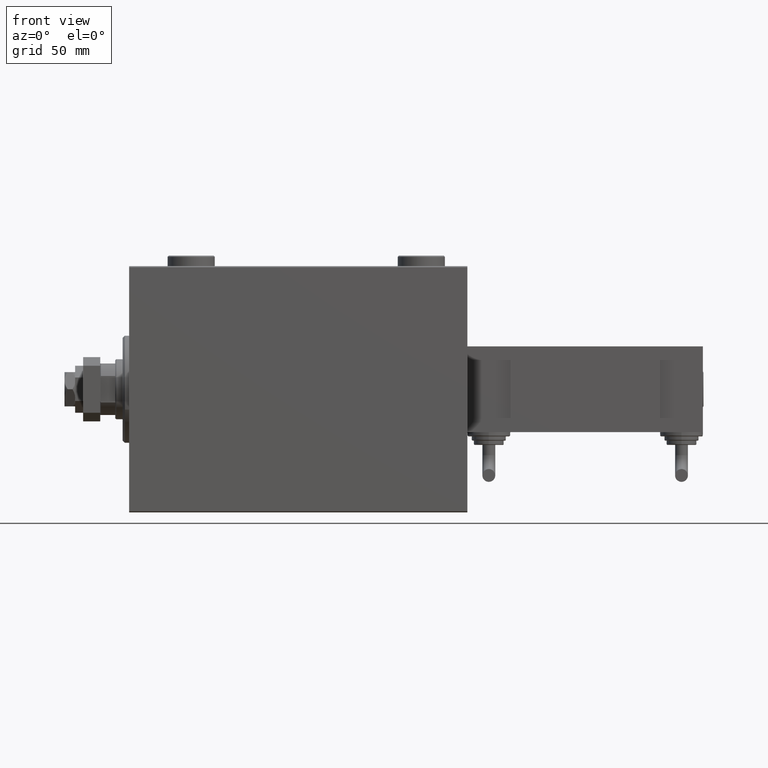
[diagram: clean part render]
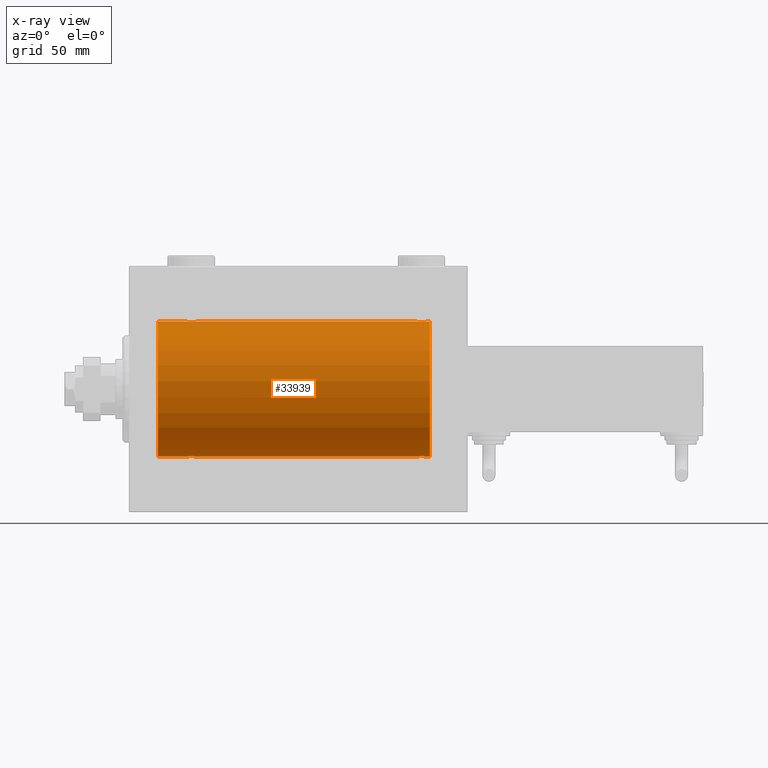
[diagram: x-ray — body ghosted, one internal face saturated and labeled with its STEP entity id]
A machine part, front view, then the same camera in x-ray: the body is ghosted and one INTERNAL B-rep face — a face not visible from any outside direction — is saturated and labeled: STEP entity #33939.
In plain terms, the highlighted cylindrical surface (partial cylindrical patch) has radius 31.5 mm, axis along (-1, -0, -0).
Its self-contained STEP definition (entity closure, byte-faithful):
#186 = B_SPLINE_CURVE_WITH_KNOTS ( 'NONE', 3,
 ( #30580, #46589, #34709, #50460, #15095, #39094, #30828, #11227, #26964, #42718, #23098, #38836, #50719, #19240, #31083, #40372, #48125, #39600, #36750, #43999, #28494, #8376, #21015, #12763, #16109, #23866, #24121, #4769, #44250, #8629, #650, #35729 ),
 .UNSPECIFIED., .F., .F.,
 ( 4, 2, 2, 2, 2, 2, 2, 2, 2, 2, 2, 2, 2, 2, 2, 4 ),
 ( 0.009384682587134639611, 0.009971088165454038837, 0.01055749374377343980, 0.01114389932209284076, 0.01173030490041223999, 0.01231671047873163921, 0.01290311605705104017, 0.01348952163537044113, 0.01407592721368984036, 0.01466233279200923958, 0.01524873837032864055, 0.01583514394864804151, 0.01642154952696744247, 0.01700795510528683996, 0.01759436068360624092, 0.01876717184024503243 ),
 .UNSPECIFIED. ) ;
#650 = CARTESIAN_POINT ( 'NONE',  ( 32.00000000000001421, -0.3965830985361748495, 31.50000000000001421 ) ) ;
#669 = CARTESIAN_POINT ( 'NONE',  ( 13.50000000000001243, 3.857637417314162689E-15, -31.50000000000000000 ) ) ;
#1203 = CARTESIAN_POINT ( 'NONE',  ( 140.5000000000000000, 0.000000000000000000, 31.50000000000000000 ) ) ;
#1431 = EDGE_LOOP ( 'NONE', ( #6270, #6605, #32012, #21652, #31991, #16884, #37772, #20898, #15958, #16199, #49963, #24649 ) ) ;
#1528 = CARTESIAN_POINT ( 'NONE',  ( 134.2390453754387636, -1.981494824113333442, 31.43792153503156683 ) ) ;
#1860 = CARTESIAN_POINT ( 'NONE',  ( 31.60417781274729165, -1.502389880412996259, -31.46458023642406587 ) ) ;
#2278 = CARTESIAN_POINT ( 'NONE',  ( 135.7211808735768841, -2.903733559410683895, 31.36590199989304395 ) ) ;
#2366 = CARTESIAN_POINT ( 'NONE',  ( 26.00000000000000355, -0.3965830985361813443, -31.50000000000000711 ) ) ;
#2523 = CARTESIAN_POINT ( 'NONE',  ( 137.4694445565852448, -2.845838211243329585, -31.37127560316186603 ) ) ;
#3789 = CARTESIAN_POINT ( 'NONE',  ( 133.8047035764099064, -1.331741824817667563, -31.47235367475392920 ) ) ;
#3978 = CIRCLE ( 'NONE', #41914, 31.50000000000000000 ) ;
#4769 = CARTESIAN_POINT ( 'NONE',  ( 31.60192140439154684, -1.506272792558323470, 31.46439306106697131 ) ) ;
#4809 = B_SPLINE_CURVE_WITH_KNOTS ( 'NONE', 3,
 ( #32218, #21379, #10012, #25502, #37367, #21122, #10269, #36860, #1528, #41250, #13630, #17264, #29370, #48994, #2278, #13880, #25755, #48496, #22137, #45119, #41752, #44871, #9762, #32986, #48751, #37119, #13130, #37874, #17516, #13380, #29119, #28866 ),
 .UNSPECIFIED., .F., .F.,
 ( 4, 2, 2, 2, 2, 2, 2, 2, 2, 2, 2, 2, 2, 2, 2, 4 ),
 ( 0.009384682587134643081, 0.009971088165454042307, 0.01055749374377344327, 0.01114389932209284423, 0.01173030490041224345, 0.01231671047873164268, 0.01290311605705104364, 0.01348952163537044460, 0.01407592721368984383, 0.01466233279200924305, 0.01524873837032864402, 0.01583514394864804498, 0.01642154952696744594, 0.01700795510528684690, 0.01759436068360624439, 0.01876717184024504284 ),
 .UNSPECIFIED. ) ;
#4910 = EDGE_CURVE ( 'NONE', #47163, #50604, #32441, .T. ) ;
#4996 = CARTESIAN_POINT ( 'NONE',  ( 13.50000000000001243, 0.000000000000000000, 0.000000000000000000 ) ) ;
#5985 = CARTESIAN_POINT ( 'NONE',  ( 28.03484270189360217, -2.847307171789034808, -31.37114183851420179 ) ) ;
#5986 = CARTESIAN_POINT ( 'NONE',  ( 26.00000000000000355, -6.595038141055444136E-15, -31.50000000000000000 ) ) ;
#5996 = CARTESIAN_POINT ( 'NONE',  ( 26.00000000000000355, -2.117263226567934635E-23, 31.50000000000000000 ) ) ;
#6139 = CARTESIAN_POINT ( 'NONE',  ( 139.1971423883670411, -1.328004386210298815, -31.47251238182141009 ) ) ;
#6239 = CARTESIAN_POINT ( 'NONE',  ( 28.60885452660059869, -2.980809450819698725, -31.35867074198615256 ) ) ;
#6270 = ORIENTED_EDGE ( 'NONE', *, *, #41601, .F. ) ;
#6393 = CARTESIAN_POINT ( 'NONE',  ( 138.0045628500700161, -2.602826974226397638, -31.39247100434485560 ) ) ;
#6605 = ORIENTED_EDGE ( 'NONE', *, *, #4910, .T. ) ;
#6675 = DIRECTION ( 'NONE',  ( -1.000000000000000000, -0.000000000000000000, -0.000000000000000000 ) ) ;
#6741 = CARTESIAN_POINT ( 'NONE',  ( 31.38501442276926667, -1.830470878313872563, -31.44719957596828763 ) ) ;
#6763 = VECTOR ( 'NONE', #29560, 1000.000000000000000 ) ;
#6924 = CARTESIAN_POINT ( 'NONE',  ( 140.5000000000000000, 3.857637417314162689E-15, -31.50000000000000000 ) ) ;
#7546 = DIRECTION ( 'NONE',  ( -1.000000000000000000, -0.000000000000000000, -0.000000000000000000 ) ) ;
#8376 = CARTESIAN_POINT ( 'NONE',  ( 30.32865414687508832, -2.696917666262907520, 31.38442820068731365 ) ) ;
#8629 = CARTESIAN_POINT ( 'NONE',  ( 31.92020662950040943, -0.7905881588836116691, 31.49214662150068378 ) ) ;
#8660 = EDGE_CURVE ( 'NONE', #46726, #11712, #15277, .T. ) ;
#9762 = CARTESIAN_POINT ( 'NONE',  ( 138.0009815629614991, -2.604888532024791203, 31.39229907792058683 ) ) ;
#9842 = CARTESIAN_POINT ( 'NONE',  ( 27.17295774629732819, -2.387531469909775605, -31.40957782495775419 ) ) ;
#9996 = CARTESIAN_POINT ( 'NONE',  ( 139.3466046374249743, -0.9669616078781922974, -31.48567319468626735 ) ) ;
#10012 = CARTESIAN_POINT ( 'NONE',  ( 133.5189849060847962, -0.3904857149112037629, 31.49817436802766935 ) ) ;
#10097 = CARTESIAN_POINT ( 'NONE',  ( 32.00000000000001421, -0.1958045626907418957, -31.50000000000000711 ) ) ;
#10269 = CARTESIAN_POINT ( 'NONE',  ( 133.8958221872527474, -1.502389880412993595, 31.46458023642405877 ) ) ;
#10351 = CARTESIAN_POINT ( 'NONE',  ( 31.98101509391517538, -0.3904857149111993775, -31.49817436802766224 ) ) ;
#10822 = CARTESIAN_POINT ( 'NONE',  ( 133.5000000000000000, -1.352509265459636606E-14, -31.50000000000000000 ) ) ;
#10898 = CARTESIAN_POINT ( 'NONE',  ( 139.5000000000000000, 3.857637396132320472E-15, -31.50000000000000000 ) ) ;
#11059 = VERTEX_POINT ( 'NONE', #5996 ) ;
#11227 = CARTESIAN_POINT ( 'NONE',  ( 26.61498557723073333, -1.830470878313877892, 31.44719957596828053 ) ) ;
#11514 = EDGE_CURVE ( 'NONE', #26627, #40296, #18370, .T. ) ;
#11527 = CARTESIAN_POINT ( 'NONE',  ( 134.6729577462972713, -2.387531469909777382, -31.40957782495775419 ) ) ;
#11712 = VERTEX_POINT ( 'NONE', #27867 ) ;
#12297 = VERTEX_POINT ( 'NONE', #669 ) ;
#12596 = DIRECTION ( 'NONE',  ( -1.000000000000000000, 0.000000000000000000, 0.000000000000000000 ) ) ;
#12763 = CARTESIAN_POINT ( 'NONE',  ( 30.82704225370267892, -2.387531469909770276, 31.40957782495776129 ) ) ;
#13130 = CARTESIAN_POINT ( 'NONE',  ( 138.8824687226663173, -1.833765390051030009, 31.44700610425690712 ) ) ;
#13279 = VECTOR ( 'NONE', #6675, 1000.000000000000000 ) ;
#13380 = CARTESIAN_POINT ( 'NONE',  ( 139.4202066295003988, -0.7905881588836107809, 31.49214662150069088 ) ) ;
#13630 = CARTESIAN_POINT ( 'NONE',  ( 134.6695630851299654, -2.384935707362434876, 31.40977595730572958 ) ) ;
#13707 = CARTESIAN_POINT ( 'NONE',  ( 29.20046458974095671, -2.999845816735294157, -31.35683219171744085 ) ) ;
#13856 = EDGE_CURVE ( 'NONE', #50604, #25341, #47058, .T. ) ;
#13880 = CARTESIAN_POINT ( 'NONE',  ( 136.1046588899990581, -2.980257240990053624, 31.35872356503797320 ) ) ;
#14074 = LINE ( 'NONE', #38318, #6763 ) ;
#14122 = CARTESIAN_POINT ( 'NONE',  ( 137.8323995809916767, -2.695056442718527290, -31.38458855656186230 ) ) ;
#14623 = CARTESIAN_POINT ( 'NONE',  ( 133.5000000000000000, -1.352509265459636606E-14, -31.50000000000000000 ) ) ;
#14647 = CARTESIAN_POINT ( 'NONE',  ( 140.5000000000000000, 0.000000000000000000, 31.50000000000000000 ) ) ;
#14960 = FACE_OUTER_BOUND ( 'NONE', #1431, .T. ) ;
#15095 = CARTESIAN_POINT ( 'NONE',  ( 26.15339536257501507, -0.9669616078781987367, 31.48567319468626735 ) ) ;
#15135 = CARTESIAN_POINT ( 'NONE',  ( 133.5797933704996581, -0.7905881588836228824, -31.49214662150070509 ) ) ;
#15277 = LINE ( 'NONE', #42897, #36718 ) ;
#15958 = ORIENTED_EDGE ( 'NONE', *, *, #29459, .T. ) ;
#16109 = CARTESIAN_POINT ( 'NONE',  ( 30.98143462873041898, -2.261012035264782227, 31.41905495618429356 ) ) ;
#16199 = ORIENTED_EDGE ( 'NONE', *, *, #21656, .F. ) ;
#16884 = ORIENTED_EDGE ( 'NONE', *, *, #25136, .T. ) ;
#17087 = LINE ( 'NONE', #44707, #44459 ) ;
#17235 = VECTOR ( 'NONE', #38641, 1000.000000000000000 ) ;
#17264 = CARTESIAN_POINT ( 'NONE',  ( 134.9954371499300407, -2.602826974226394086, 31.39247100434485560 ) ) ;
#17516 = CARTESIAN_POINT ( 'NONE',  ( 139.1952964235900652, -1.331741824817656683, 31.47235367475393630 ) ) ;
#17595 = CARTESIAN_POINT ( 'NONE',  ( 30.33239958099164824, -2.695056442718529954, -31.38458855656185875 ) ) ;
#18256 = CARTESIAN_POINT ( 'NONE',  ( 137.2788191264232296, -2.903733559410679455, -31.36590199989304395 ) ) ;
#18340 = DIRECTION ( 'NONE',  ( -1.000000000000000000, -0.000000000000000000, -0.000000000000000000 ) ) ;
#18370 = B_SPLINE_CURVE_WITH_KNOTS ( 'NONE', 3,
 ( #41079, #10097, #10351, #37194, #49330, #29705, #1860, #6741, #41585, #30213, #36945, #45459, #17595, #33318, #49077, #25834, #13707, #29448, #6239, #45201, #5985, #21962, #26087, #9842, #25584, #49839, #37701, #41329, #41840, #21710, #2366, #33827 ),
 .UNSPECIFIED., .F., .F.,
 ( 4, 2, 2, 2, 2, 2, 2, 2, 2, 2, 2, 2, 2, 2, 2, 4 ),
 ( 0.009384682587134662163, 0.009971088165454068328, 0.01055749374377347449, 0.01114389932209288066, 0.01173030490041228682, 0.01231671047873168605, 0.01290311605705108527, 0.01348952163537048277, 0.01407592721368988199, 0.01466233279200928122, 0.01524873837032868044, 0.01583514394864807967, 0.01642154952696747716, 0.01700795510528687812, 0.01759436068360627908, 0.01876717184024507407 ),
 .UNSPECIFIED. ) ;
#18509 = CARTESIAN_POINT ( 'NONE',  ( 136.3041770556056065, -3.000152387858487923, -31.35680286115500337 ) ) ;
#19019 = CARTESIAN_POINT ( 'NONE',  ( 134.5185653712696308, -2.261012035264782671, -31.41905495618427935 ) ) ;
#19240 = CARTESIAN_POINT ( 'NONE',  ( 28.03055544341478722, -2.845838211243333138, 31.37127560316186603 ) ) ;
#19277 = CARTESIAN_POINT ( 'NONE',  ( 134.1175312773337112, -1.833765390051051769, -31.44700610425689291 ) ) ;
#19529 = CARTESIAN_POINT ( 'NONE',  ( 134.2417549809673574, -1.984587626072075173, -31.43772577203671759 ) ) ;
#19925 = EDGE_CURVE ( 'NONE', #11059, #25592, #25004, .T. ) ;
#20604 = CARTESIAN_POINT ( 'NONE',  ( 13.50000000000001243, 0.000000000000000000, 31.50000000000000000 ) ) ;
#20728 = DIRECTION ( 'NONE',  ( 0.000000000000000000, 0.000000000000000000, 1.000000000000000000 ) ) ;
#20898 = ORIENTED_EDGE ( 'NONE', *, *, #19925, .F. ) ;
#21015 = CARTESIAN_POINT ( 'NONE',  ( 30.50098156296146712, -2.604888532024788983, 31.39229907792058683 ) ) ;
#21122 = CARTESIAN_POINT ( 'NONE',  ( 133.8028576116330441, -1.328004386210311472, 31.47251238182141719 ) ) ;
#21379 = CARTESIAN_POINT ( 'NONE',  ( 133.5000000000000000, -0.1958045626907475856, 31.50000000000000000 ) ) ;
#21652 = ORIENTED_EDGE ( 'NONE', *, *, #27769, .T. ) ;
#21656 = EDGE_CURVE ( 'NONE', #45665, #26732, #17087, .T. ) ;
#21710 = CARTESIAN_POINT ( 'NONE',  ( 26.07979337049960478, -0.7905881588836203289, -31.49214662150069088 ) ) ;
#21863 = CARTESIAN_POINT ( 'NONE',  ( 138.8850144227692738, -1.830470878313873895, -31.44719957596828763 ) ) ;
#21962 = CARTESIAN_POINT ( 'NONE',  ( 27.67134585312494011, -2.696917666262907520, -31.38442820068732786 ) ) ;
#22137 = CARTESIAN_POINT ( 'NONE',  ( 136.8911454733994333, -2.980809450819698281, 31.35867074198615967 ) ) ;
#22377 = CARTESIAN_POINT ( 'NONE',  ( 138.4846035992466682, -2.258226318633792751, -31.41925597582824992 ) ) ;
#22878 = CARTESIAN_POINT ( 'NONE',  ( 133.5000000000000000, -0.3965830985361880057, -31.50000000000000000 ) ) ;
#23098 = CARTESIAN_POINT ( 'NONE',  ( 27.16956308512997964, -2.384935707362437096, 31.40977595730572958 ) ) ;
#23866 = CARTESIAN_POINT ( 'NONE',  ( 31.25824501903266039, -1.984587626072074285, 31.43772577203672469 ) ) ;
#24121 = CARTESIAN_POINT ( 'NONE',  ( 31.38246872266631371, -1.833765390051040223, 31.44700610425690712 ) ) ;
#24649 = ORIENTED_EDGE ( 'NONE', *, *, #8660, .F. ) ;
#24824 = DIRECTION ( 'NONE',  ( -1.000000000000000000, -0.000000000000000000, -0.000000000000000000 ) ) ;
#25004 = LINE ( 'NONE', #14647, #17235 ) ;
#25136 = EDGE_CURVE ( 'NONE', #40296, #12297, #26275, .T. ) ;
#25341 = VERTEX_POINT ( 'NONE', #10822 ) ;
#25502 = CARTESIAN_POINT ( 'NONE',  ( 133.5958054926194905, -0.7775502215293850217, 31.49099686045560276 ) ) ;
#25584 = CARTESIAN_POINT ( 'NONE',  ( 27.01856537126958813, -2.261012035264781783, -31.41905495618428645 ) ) ;
#25592 = VERTEX_POINT ( 'NONE', #20604 ) ;
#25755 = CARTESIAN_POINT ( 'NONE',  ( 136.2995354102590113, -2.999845816735293713, 31.35683219171744796 ) ) ;
#25819 = CYLINDRICAL_SURFACE ( 'NONE', #44942, 31.50000000000000000 ) ;
#25834 = CARTESIAN_POINT ( 'NONE',  ( 29.39534111000094541, -2.980257240990050960, -31.35872356503797320 ) ) ;
#26087 = CARTESIAN_POINT ( 'NONE',  ( 27.49901843703856130, -2.604888532024793424, -31.39229907792058683 ) ) ;
#26275 = LINE ( 'NONE', #6924, #13279 ) ;
#26627 = VERTEX_POINT ( 'NONE', #46387 ) ;
#26732 = VERTEX_POINT ( 'NONE', #47155 ) ;
#26964 = CARTESIAN_POINT ( 'NONE',  ( 26.73904537543869608, -1.981494824113328779, 31.43792153503155973 ) ) ;
#27262 = CARTESIAN_POINT ( 'NONE',  ( 133.8980785956084958, -1.506272792558336793, -31.46439306106695710 ) ) ;
#27769 = EDGE_CURVE ( 'NONE', #25341, #26627, #14074, .T. ) ;
#27867 = CARTESIAN_POINT ( 'NONE',  ( 139.5000000000000000, 4.699731104275013306E-15, 31.50000000000000000 ) ) ;
#28494 = CARTESIAN_POINT ( 'NONE',  ( 29.96515729810641204, -2.847307171789037028, 31.37114183851420890 ) ) ;
#28866 = CARTESIAN_POINT ( 'NONE',  ( 139.5000000000000000, 4.699731104275013306E-15, 31.50000000000000000 ) ) ;
#29119 = CARTESIAN_POINT ( 'NONE',  ( 139.5000000000000000, -0.3965830985361761263, 31.50000000000000000 ) ) ;
#29342 = CARTESIAN_POINT ( 'NONE',  ( 140.5000000000000000, 0.000000000000000000, 0.000000000000000000 ) ) ;
#29370 = CARTESIAN_POINT ( 'NONE',  ( 135.1676004190083233, -2.695056442718522849, 31.38458855656185165 ) ) ;
#29448 = CARTESIAN_POINT ( 'NONE',  ( 28.80417705560560648, -3.000152387858484371, -31.35680286115500337 ) ) ;
#29459 = EDGE_CURVE ( 'NONE', #11059, #26732, #186, .T. ) ;
#29560 = DIRECTION ( 'NONE',  ( -1.000000000000000000, -0.000000000000000000, -0.000000000000000000 ) ) ;
#29605 = CARTESIAN_POINT ( 'NONE',  ( 139.5000000000000000, 3.857637396132320472E-15, -31.50000000000000000 ) ) ;
#29705 = CARTESIAN_POINT ( 'NONE',  ( 31.69714238836700915, -1.328004386210301480, -31.47251238182141009 ) ) ;
#30119 = CARTESIAN_POINT ( 'NONE',  ( 136.8953411100009703, -2.980257240990054513, -31.35872356503798031 ) ) ;
#30213 = CARTESIAN_POINT ( 'NONE',  ( 30.98460359924664687, -2.258226318633781649, -31.41925597582825702 ) ) ;
#30580 = CARTESIAN_POINT ( 'NONE',  ( 26.00000000000000355, -2.117263226567934635E-23, 31.50000000000000000 ) ) ;
#30701 = CARTESIAN_POINT ( 'NONE',  ( 140.5000000000000000, 0.000000000000000000, 0.000000000000000000 ) ) ;
#30828 = CARTESIAN_POINT ( 'NONE',  ( 26.39582218725271900, -1.502389880413001144, 31.46458023642405166 ) ) ;
#31083 = CARTESIAN_POINT ( 'NONE',  ( 28.22118087357680238, -2.903733559410683895, 31.36590199989303684 ) ) ;
#31123 = CARTESIAN_POINT ( 'NONE',  ( 135.7253090556563109, -2.904836261170105960, -31.36579955910873707 ) ) ;
#31319 = AXIS2_PLACEMENT_3D ( 'NONE', #4996, #40075, #20728 ) ;
#31923 = DIRECTION ( 'NONE',  ( -1.000000000000000000, -0.000000000000000000, -0.000000000000000000 ) ) ;
#31991 = ORIENTED_EDGE ( 'NONE', *, *, #11514, .T. ) ;
#32012 = ORIENTED_EDGE ( 'NONE', *, *, #13856, .T. ) ;
#32218 = CARTESIAN_POINT ( 'NONE',  ( 133.5000000000000000, -2.118130973563677748E-23, 31.50000000000000000 ) ) ;
#32441 = LINE ( 'NONE', #40708, #42362 ) ;
#32968 = CARTESIAN_POINT ( 'NONE',  ( 133.5000000000000000, -2.118130973563677748E-23, 31.50000000000000000 ) ) ;
#32986 = CARTESIAN_POINT ( 'NONE',  ( 138.3270422537026718, -2.387531469909772941, 31.40957782495776840 ) ) ;
#33318 = CARTESIAN_POINT ( 'NONE',  ( 29.96944455658523054, -2.845838211243329585, -31.37127560316186603 ) ) ;
#33729 = CARTESIAN_POINT ( 'NONE',  ( 139.4041945073805380, -0.7775502215293800257, -31.49099686045559565 ) ) ;
#33827 = CARTESIAN_POINT ( 'NONE',  ( 26.00000000000000355, -6.595038141055444136E-15, -31.50000000000000000 ) ) ;
#33939 = ADVANCED_FACE ( 'NONE', ( #14960 ), #25819, .F. ) ;
#33990 = CARTESIAN_POINT ( 'NONE',  ( 138.7609546245612933, -1.981494824113336994, -31.43792153503156683 ) ) ;
#34492 = CARTESIAN_POINT ( 'NONE',  ( 135.1713458531249046, -2.696917666262910629, -31.38442820068732075 ) ) ;
#34606 = CIRCLE ( 'NONE', #31319, 31.50000000000000000 ) ;
#34709 = CARTESIAN_POINT ( 'NONE',  ( 26.01898490608483527, -0.3904857149112033743, 31.49817436802766935 ) ) ;
#35729 = CARTESIAN_POINT ( 'NONE',  ( 32.00000000000000000, -3.906065418435112189E-16, 31.50000000000000000 ) ) ;
#36718 = VECTOR ( 'NONE', #7546, 1000.000000000000000 ) ;
#36750 = CARTESIAN_POINT ( 'NONE',  ( 29.39114547339941552, -2.980809450819701834, 31.35867074198615967 ) ) ;
#36860 = CARTESIAN_POINT ( 'NONE',  ( 134.1149855772307546, -1.830470878313871008, 31.44719957596828763 ) ) ;
#36945 = CARTESIAN_POINT ( 'NONE',  ( 30.83043691487002746, -2.384935707362433988, -31.40977595730572958 ) ) ;
#37119 = CARTESIAN_POINT ( 'NONE',  ( 138.7582450190326995, -1.984587626072069844, 31.43772577203671759 ) ) ;
#37194 = CARTESIAN_POINT ( 'NONE',  ( 31.90419450738055218, -0.7775502215293819130, -31.49099686045559565 ) ) ;
#37367 = CARTESIAN_POINT ( 'NONE',  ( 133.6533953625750257, -0.9669616078782046209, 31.48567319468627801 ) ) ;
#37701 = CARTESIAN_POINT ( 'NONE',  ( 26.61753127733371116, -1.833765390051047106, -31.44700610425690002 ) ) ;
#37772 = ORIENTED_EDGE ( 'NONE', *, *, #49569, .T. ) ;
#37858 = CARTESIAN_POINT ( 'NONE',  ( 139.1041778127473094, -1.502389880412994483, -31.46458023642405877 ) ) ;
#37874 = CARTESIAN_POINT ( 'NONE',  ( 139.1019214043915326, -1.506272792558311702, 31.46439306106696421 ) ) ;
#38113 = CARTESIAN_POINT ( 'NONE',  ( 136.7004645897410171, -2.999845816735297710, -31.35683219171744796 ) ) ;
#38318 = CARTESIAN_POINT ( 'NONE',  ( 140.5000000000000000, 3.857637417314162689E-15, -31.50000000000000000 ) ) ;
#38641 = DIRECTION ( 'NONE',  ( -1.000000000000000000, -0.000000000000000000, -0.000000000000000000 ) ) ;
#38836 = CARTESIAN_POINT ( 'NONE',  ( 27.49543714993000876, -2.602826974226395862, 31.39247100434485560 ) ) ;
#39094 = CARTESIAN_POINT ( 'NONE',  ( 26.30285761163300151, -1.328004386210305698, 31.47251238182140298 ) ) ;
#39600 = CARTESIAN_POINT ( 'NONE',  ( 29.19582294439440417, -3.000152387858486147, 31.35680286115499626 ) ) ;
#40075 = DIRECTION ( 'NONE',  ( -1.000000000000000000, 0.000000000000000000, 0.000000000000000000 ) ) ;
#40296 = VERTEX_POINT ( 'NONE', #5986 ) ;
#40372 = CARTESIAN_POINT ( 'NONE',  ( 28.60465888999904749, -2.980257240990054513, 31.35872356503797320 ) ) ;
#40708 = CARTESIAN_POINT ( 'NONE',  ( 140.5000000000000000, 3.857637417314162689E-15, -31.50000000000000000 ) ) ;
#41079 = CARTESIAN_POINT ( 'NONE',  ( 32.00000000000000000, 3.857637396137448068E-15, -31.50000000000000000 ) ) ;
#41224 = DIRECTION ( 'NONE',  ( 0.000000000000000000, 0.000000000000000000, 1.000000000000000000 ) ) ;
#41250 = CARTESIAN_POINT ( 'NONE',  ( 134.5153964007533602, -2.258226318633788754, 31.41925597582826413 ) ) ;
#41329 = CARTESIAN_POINT ( 'NONE',  ( 26.39807859560848158, -1.506272792558332130, -31.46439306106697131 ) ) ;
#41491 = CARTESIAN_POINT ( 'NONE',  ( 139.4999999999999716, -0.1958045626907426173, -31.49999999999999289 ) ) ;
#41585 = CARTESIAN_POINT ( 'NONE',  ( 31.26095462456130747, -1.981494824113326114, -31.43792153503156683 ) ) ;
#41601 = EDGE_CURVE ( 'NONE', #47163, #46726, #3978, .T. ) ;
#41752 = CARTESIAN_POINT ( 'NONE',  ( 137.4651572981064476, -2.847307171789025926, 31.37114183851420179 ) ) ;
#41840 = CARTESIAN_POINT ( 'NONE',  ( 26.30470357640989576, -1.331741824817665343, -31.47235367475392920 ) ) ;
#41914 = AXIS2_PLACEMENT_3D ( 'NONE', #29342, #12596, #41224 ) ;
#42362 = VECTOR ( 'NONE', #31923, 1000.000000000000000 ) ;
#42640 = CARTESIAN_POINT ( 'NONE',  ( 140.5000000000000000, 3.857637417314162689E-15, -31.50000000000000000 ) ) ;
#42718 = CARTESIAN_POINT ( 'NONE',  ( 27.01539640075335669, -2.258226318633785201, 31.41925597582825702 ) ) ;
#42897 = CARTESIAN_POINT ( 'NONE',  ( 140.5000000000000000, 0.000000000000000000, 31.50000000000000000 ) ) ;
#43999 = CARTESIAN_POINT ( 'NONE',  ( 29.77469094434372821, -2.904836261170106404, 31.36579955910873707 ) ) ;
#44250 = CARTESIAN_POINT ( 'NONE',  ( 31.69529642359010424, -1.331741824817659348, 31.47235367475393630 ) ) ;
#44459 = VECTOR ( 'NONE', #24824, 1000.000000000000000 ) ;
#44707 = CARTESIAN_POINT ( 'NONE',  ( 140.5000000000000000, 0.000000000000000000, 31.50000000000000000 ) ) ;
#44871 = CARTESIAN_POINT ( 'NONE',  ( 137.8286541468751523, -2.696917666262893309, 31.38442820068731365 ) ) ;
#44942 = AXIS2_PLACEMENT_3D ( 'NONE', #30701, #18340, #46458 ) ;
#45119 = CARTESIAN_POINT ( 'NONE',  ( 137.2746909443437175, -2.904836261170101519, 31.36579955910872286 ) ) ;
#45201 = CARTESIAN_POINT ( 'NONE',  ( 28.22530905565627179, -2.904836261170103739, -31.36579955910872286 ) ) ;
#45362 = CARTESIAN_POINT ( 'NONE',  ( 139.4810150939152322, -0.3904857149111997106, -31.49817436802768000 ) ) ;
#45459 = CARTESIAN_POINT ( 'NONE',  ( 30.50456285006998769, -2.602826974226392309, -31.39247100434485560 ) ) ;
#45665 = VERTEX_POINT ( 'NONE', #32968 ) ;
#45868 = CARTESIAN_POINT ( 'NONE',  ( 136.1088545266005951, -2.980809450819701834, -31.35867074198615256 ) ) ;
#46123 = CARTESIAN_POINT ( 'NONE',  ( 135.5348427018936093, -2.847307171789039248, -31.37114183851420179 ) ) ;
#46387 = CARTESIAN_POINT ( 'NONE',  ( 32.00000000000000000, 3.857637396137448068E-15, -31.50000000000000000 ) ) ;
#46458 = DIRECTION ( 'NONE',  ( 0.000000000000000000, 0.000000000000000000, 1.000000000000000000 ) ) ;
#46589 = CARTESIAN_POINT ( 'NONE',  ( 26.00000000000001066, -0.1958045626907463088, 31.50000000000000711 ) ) ;
#46726 = VERTEX_POINT ( 'NONE', #1203 ) ;
#47058 = B_SPLINE_CURVE_WITH_KNOTS ( 'NONE', 3,
 ( #29605, #41491, #45362, #33729, #9996, #6139, #37858, #21863, #33990, #22377, #49485, #6393, #14122, #2523, #18256, #30119, #38113, #18509, #45868, #31123, #46123, #34492, #50759, #11527, #19019, #19529, #19277, #27262, #3789, #15135, #22878, #14623 ),
 .UNSPECIFIED., .F., .F.,
 ( 4, 2, 2, 2, 2, 2, 2, 2, 2, 2, 2, 2, 2, 2, 2, 4 ),
 ( 0.009384682587134637877, 0.009971088165454037103, 0.01055749374377343633, 0.01114389932209283382, 0.01173030490041223305, 0.01231671047873163227, 0.01290311605705102976, 0.01348952163537042899, 0.01407592721368982822, 0.01466233279200922744, 0.01524873837032862667, 0.01583514394864802416, 0.01642154952696742165, 0.01700795510528682261, 0.01759436068360622010, 0.01876717184024501855 ),
 .UNSPECIFIED. ) ;
#47155 = CARTESIAN_POINT ( 'NONE',  ( 32.00000000000000000, -3.906065418435112189E-16, 31.50000000000000000 ) ) ;
#47163 = VERTEX_POINT ( 'NONE', #42640 ) ;
#47212 = EDGE_CURVE ( 'NONE', #45665, #11712, #4809, .T. ) ;
#48125 = CARTESIAN_POINT ( 'NONE',  ( 28.79953541025904684, -2.999845816735297266, 31.35683219171744796 ) ) ;
#48496 = CARTESIAN_POINT ( 'NONE',  ( 136.6958229443944504, -3.000152387858483927, 31.35680286115499626 ) ) ;
#48751 = CARTESIAN_POINT ( 'NONE',  ( 138.4814346287304261, -2.261012035264779119, 31.41905495618428645 ) ) ;
#48994 = CARTESIAN_POINT ( 'NONE',  ( 135.5305554434147837, -2.845838211243326032, 31.37127560316188024 ) ) ;
#49077 = CARTESIAN_POINT ( 'NONE',  ( 29.77881912642320827, -2.903733559410679455, -31.36590199989303684 ) ) ;
#49330 = CARTESIAN_POINT ( 'NONE',  ( 31.84660463742499559, -0.9669616078781945179, -31.48567319468626735 ) ) ;
#49485 = CARTESIAN_POINT ( 'NONE',  ( 138.3304369148700346, -2.384935707362437984, -31.40977595730572958 ) ) ;
#49569 = EDGE_CURVE ( 'NONE', #12297, #25592, #34606, .T. ) ;
#49839 = CARTESIAN_POINT ( 'NONE',  ( 26.74175498096735026, -1.984587626072075617, -31.43772577203673180 ) ) ;
#49963 = ORIENTED_EDGE ( 'NONE', *, *, #47212, .T. ) ;
#50460 = CARTESIAN_POINT ( 'NONE',  ( 26.09580549261944427, -0.7775502215293862429, 31.49099686045558144 ) ) ;
#50604 = VERTEX_POINT ( 'NONE', #10898 ) ;
#50719 = CARTESIAN_POINT ( 'NONE',  ( 27.66760041900836953, -2.695056442718533507, 31.38458855656185875 ) ) ;
#50759 = CARTESIAN_POINT ( 'NONE',  ( 134.9990184370385293, -2.604888532024794312, -31.39229907792057972 ) ) ;